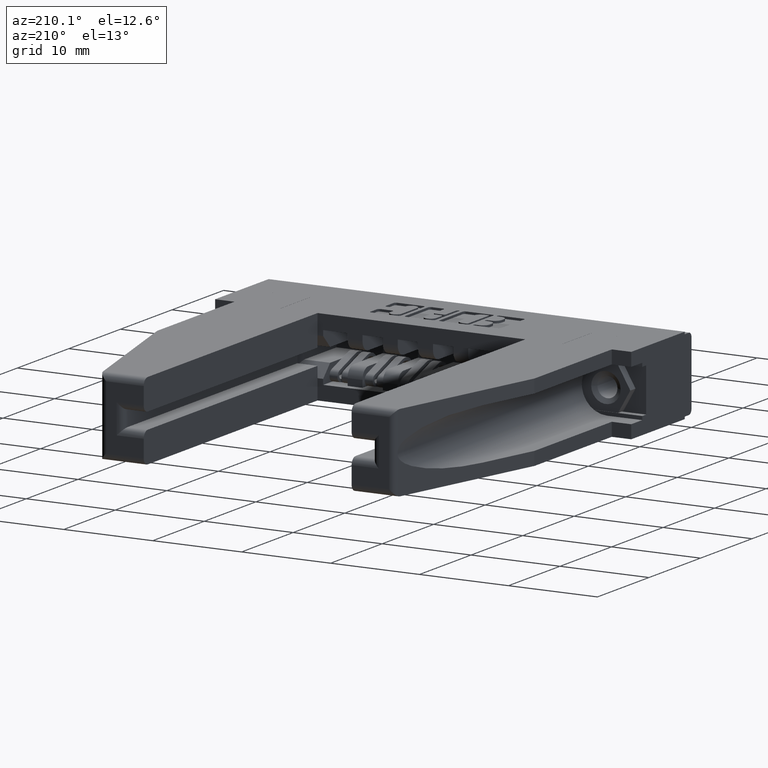
[diagram: clean part render]
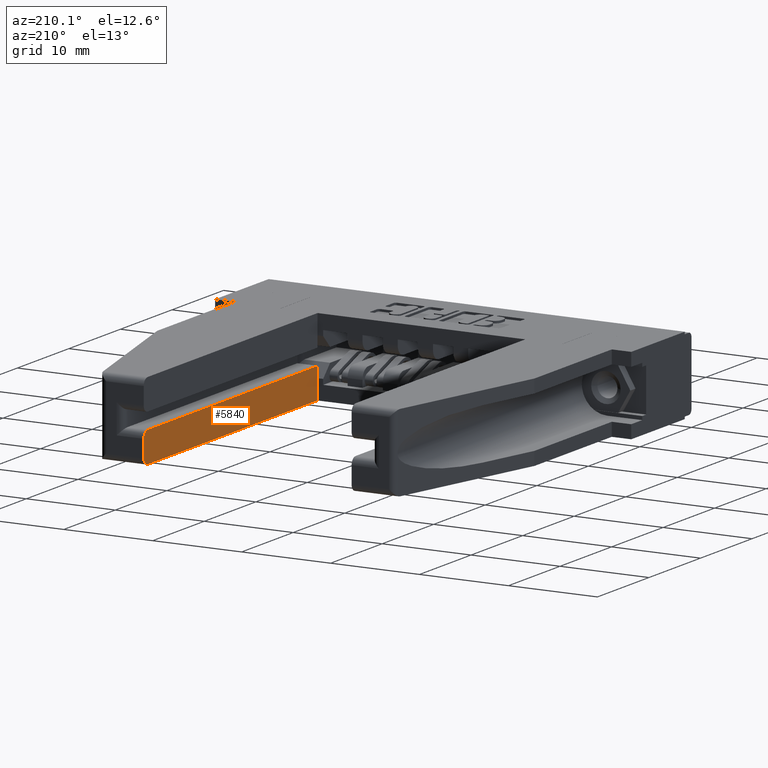
[diagram: same view with one face highlighted and labeled with its STEP entity id]
A machine part, auxiliary view. The second image highlights one B-rep face of the part: STEP entity #5840.
In plain terms, the highlighted planar face has unit normal (-1, -0, 0).
Its self-contained STEP definition (entity closure, byte-faithful):
#81 = CARTESIAN_POINT ( 'NONE',  ( 0.4610000000000025200, 1.519999999999998200, 0.0000000000000000000 ) ) ;
#153 = DIRECTION ( 'NONE',  ( 1.972152263052529500E-031, 1.690917325168892100E-017, 1.000000000000000000 ) ) ;
#333 = EDGE_CURVE ( 'NONE', #7841, #2500, #1765, .T. ) ;
#677 = ORIENTED_EDGE ( 'NONE', *, *, #11343, .F. ) ;
#1765 = CIRCLE ( 'NONE', #10343, 0.02999999999999995400 ) ;
#1844 = PLANE ( 'NONE',  #9616 ) ;
#2500 = VERTEX_POINT ( 'NONE', #9156 ) ;
#2723 = LINE ( 'NONE', #3265, #6905 ) ;
#2827 = ORIENTED_EDGE ( 'NONE', *, *, #10510, .T. ) ;
#2869 = EDGE_CURVE ( 'NONE', #2989, #4497, #11582, .T. ) ;
#2943 = EDGE_CURVE ( 'NONE', #2500, #11436, #4754, .T. ) ;
#2989 = VERTEX_POINT ( 'NONE', #3103 ) ;
#3103 = CARTESIAN_POINT ( 'NONE',  ( 0.4610000000000025200, 0.2229999999999990000, -0.1360000000000001800 ) ) ;
#3265 = CARTESIAN_POINT ( 'NONE',  ( 0.4610000000000025200, 0.2229999999999990000, -0.1360000000000001800 ) ) ;
#3313 = FACE_OUTER_BOUND ( 'NONE', #4986, .T. ) ;
#3357 = CIRCLE ( 'NONE', #7629, 0.02999999999999995400 ) ;
#3571 = ORIENTED_EDGE ( 'NONE', *, *, #2869, .F. ) ;
#3723 = DIRECTION ( 'NONE',  ( 4.725876128539997400E-016, 1.000000000000000000, 1.690917325168899800E-017 ) ) ;
#3823 = VECTOR ( 'NONE', #5562, 39.37007874015748100 ) ;
#4160 = VERTEX_POINT ( 'NONE', #81 ) ;
#4168 = CARTESIAN_POINT ( 'NONE',  ( 0.4610000000000025200, 0.2229999999999990000, -1.365923996832131600E-016 ) ) ;
#4323 = VECTOR ( 'NONE', #153, 39.37007874015748100 ) ;
#4497 = VERTEX_POINT ( 'NONE', #4168 ) ;
#4711 = DIRECTION ( 'NONE',  ( 1.000000000000000000, -4.725876128539997400E-016, 2.076255138123910700E-031 ) ) ;
#4754 = LINE ( 'NONE', #7683, #8949 ) ;
#4834 = DIRECTION ( 'NONE',  ( 1.972152263052529500E-031, 1.690917325168892100E-017, 1.000000000000000000 ) ) ;
#4986 = EDGE_LOOP ( 'NONE', ( #10721, #2827, #677, #3571, #7667, #11915 ) ) ;
#5562 = DIRECTION ( 'NONE',  ( 4.725876128539996400E-016, 1.000000000000000000, 1.690917325168898200E-017 ) ) ;
#5610 = CARTESIAN_POINT ( 'NONE',  ( 0.4610000000000025200, 0.2229999999999990000, -0.3430000000000000300 ) ) ;
#5840 = ADVANCED_FACE ( 'NONE', ( #3313 ), #1844, .T. ) ;
#6191 = DIRECTION ( 'NONE',  ( 1.000000000000000000, 3.696543802366543300E-016, 2.218671295934087800E-031 ) ) ;
#6215 = EDGE_CURVE ( 'NONE', #7841, #2989, #2723, .T. ) ;
#6905 = VECTOR ( 'NONE', #7046, 39.37007874015748100 ) ;
#7046 = DIRECTION ( 'NONE',  ( -4.725876128539996400E-016, -1.000000000000000000, -8.124244363752811300E-017 ) ) ;
#7629 = AXIS2_PLACEMENT_3D ( 'NONE', #8854, #6191, #8017 ) ;
#7667 = ORIENTED_EDGE ( 'NONE', *, *, #6215, .F. ) ;
#7683 = CARTESIAN_POINT ( 'NONE',  ( 0.4610000000000025200, 1.549999999999998700, -0.3430000000000000300 ) ) ;
#7841 = VERTEX_POINT ( 'NONE', #10482 ) ;
#8017 = DIRECTION ( 'NONE',  ( 0.0000000000000000000, 1.000000000000000000, 0.0000000000000000000 ) ) ;
#8283 = CARTESIAN_POINT ( 'NONE',  ( 0.4610000000000025200, 1.549999999999998700, -0.03000000000000002300 ) ) ;
#8743 = LINE ( 'NONE', #9195, #3823 ) ;
#8854 = CARTESIAN_POINT ( 'NONE',  ( 0.4610000000000025200, 1.519999999999998900, -0.03000000000000002300 ) ) ;
#8949 = VECTOR ( 'NONE', #4834, 39.37007874015748100 ) ;
#9156 = CARTESIAN_POINT ( 'NONE',  ( 0.4610000000000025200, 1.549999999999998700, -0.1059999999999999100 ) ) ;
#9195 = CARTESIAN_POINT ( 'NONE',  ( 0.4610000000000025200, 0.2229999999999990000, -1.365923996832131600E-016 ) ) ;
#9616 = AXIS2_PLACEMENT_3D ( 'NONE', #5610, #4711, #3723 ) ;
#10343 = AXIS2_PLACEMENT_3D ( 'NONE', #10388, #11315, #10503 ) ;
#10388 = CARTESIAN_POINT ( 'NONE',  ( 0.4610000000000025200, 1.519999999999998900, -0.1059999999999999100 ) ) ;
#10482 = CARTESIAN_POINT ( 'NONE',  ( 0.4610000000000025200, 1.519999999999998200, -0.1359999999999999000 ) ) ;
#10503 = DIRECTION ( 'NONE',  ( 0.0000000000000000000, 1.000000000000000000, 0.0000000000000000000 ) ) ;
#10510 = EDGE_CURVE ( 'NONE', #11436, #4160, #3357, .T. ) ;
#10721 = ORIENTED_EDGE ( 'NONE', *, *, #2943, .T. ) ;
#11315 = DIRECTION ( 'NONE',  ( 1.000000000000000000, 3.696543802366543300E-016, 2.218671295934087800E-031 ) ) ;
#11343 = EDGE_CURVE ( 'NONE', #4497, #4160, #8743, .T. ) ;
#11436 = VERTEX_POINT ( 'NONE', #8283 ) ;
#11582 = LINE ( 'NONE', #11999, #4323 ) ;
#11915 = ORIENTED_EDGE ( 'NONE', *, *, #333, .T. ) ;
#11999 = CARTESIAN_POINT ( 'NONE',  ( 0.4610000000000025200, 0.2229999999999990000, -0.3430000000000000300 ) ) ;